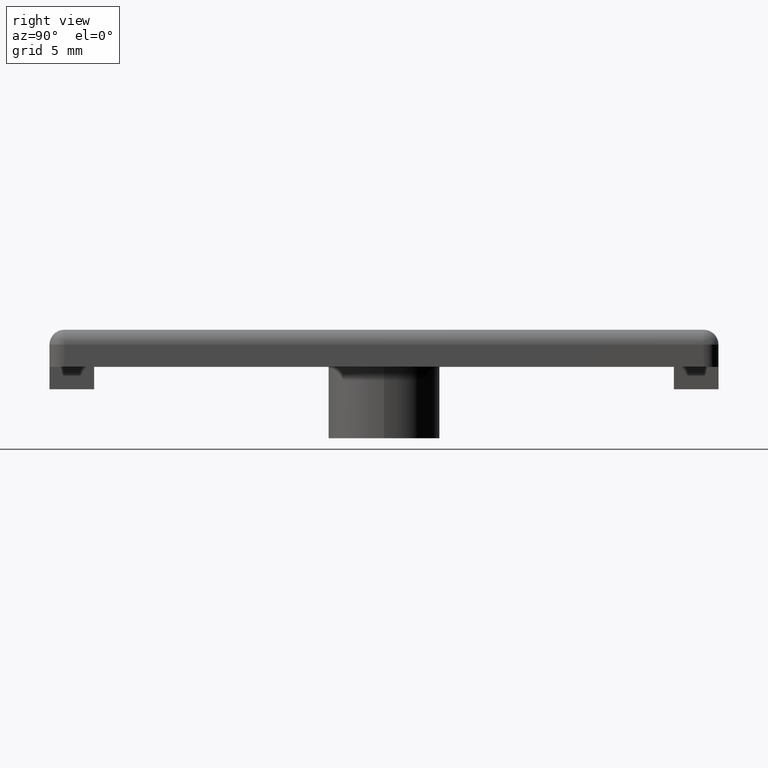
[diagram: clean part render]
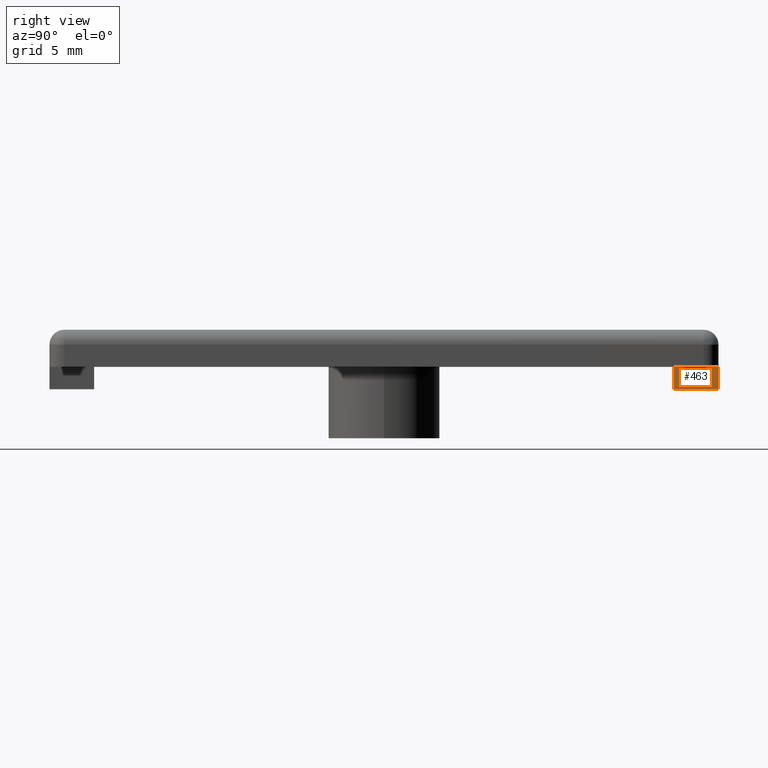
[diagram: same view with one face highlighted and labeled with its STEP entity id]
A machine part, right view. The second image highlights one B-rep face of the part: STEP entity #463.
In plain terms, the highlighted planar face has unit normal (1, 0, 0).
Its self-contained STEP definition (entity closure, byte-faithful):
#43=FACE_OUTER_BOUND('',#77,.T.);
#77=EDGE_LOOP('',(#353,#354,#355,#356));
#106=LINE('',#697,#150);
#120=LINE('',#739,#164);
#121=LINE('',#741,#165);
#122=LINE('',#742,#166);
#150=VECTOR('',#550,2.99999999998771);
#164=VECTOR('',#594,1.5);
#165=VECTOR('',#595,1.5);
#166=VECTOR('',#596,2.99999999998771);
#217=VERTEX_POINT('',#694);
#218=VERTEX_POINT('',#696);
#231=VERTEX_POINT('',#738);
#232=VERTEX_POINT('',#740);
#257=EDGE_CURVE('',#218,#217,#106,.T.);
#276=EDGE_CURVE('',#218,#231,#120,.T.);
#277=EDGE_CURVE('',#217,#232,#121,.T.);
#278=EDGE_CURVE('',#231,#232,#122,.T.);
#353=ORIENTED_EDGE('',*,*,#276,.F.);
#354=ORIENTED_EDGE('',*,*,#257,.T.);
#355=ORIENTED_EDGE('',*,*,#277,.T.);
#356=ORIENTED_EDGE('',*,*,#278,.F.);
#445=PLANE('',#503);
#463=ADVANCED_FACE('',(#43),#445,.T.);
#503=AXIS2_PLACEMENT_3D('',#737,#592,#593);
#550=DIRECTION('',(0.,-1.,0.));
#592=DIRECTION('center_axis',(1.,0.,0.));
#593=DIRECTION('ref_axis',(0.,0.,-1.));
#594=DIRECTION('',(0.,0.,-1.));
#595=DIRECTION('',(0.,0.,-1.));
#596=DIRECTION('',(0.,-1.,0.));
#694=CARTESIAN_POINT('',(3.99999999998409,19.4999999999222,4.898587E-16));
#696=CARTESIAN_POINT('',(3.99999999998409,22.49999999991,4.898587E-16));
#697=CARTESIAN_POINT('',(3.99999999998409,22.49999999991,4.898587E-16));
#737=CARTESIAN_POINT('Origin',(3.99999999998409,22.49999999991,4.898587E-16));
#738=CARTESIAN_POINT('',(3.99999999998409,22.49999999991,-1.5));
#739=CARTESIAN_POINT('',(3.99999999998409,22.49999999991,4.898587E-16));
#740=CARTESIAN_POINT('',(3.99999999998409,19.4999999999222,-1.5));
#741=CARTESIAN_POINT('',(3.99999999998409,19.4999999999222,4.898587E-16));
#742=CARTESIAN_POINT('',(3.99999999998409,22.49999999991,-1.5));